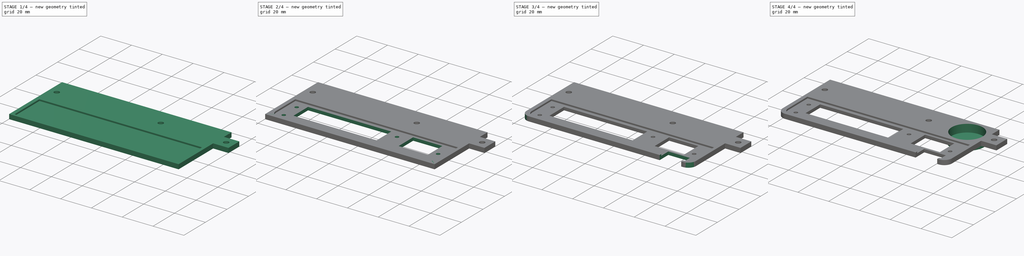
[diagram: build sequence overview — one tinted view per stage of 4, left to right]
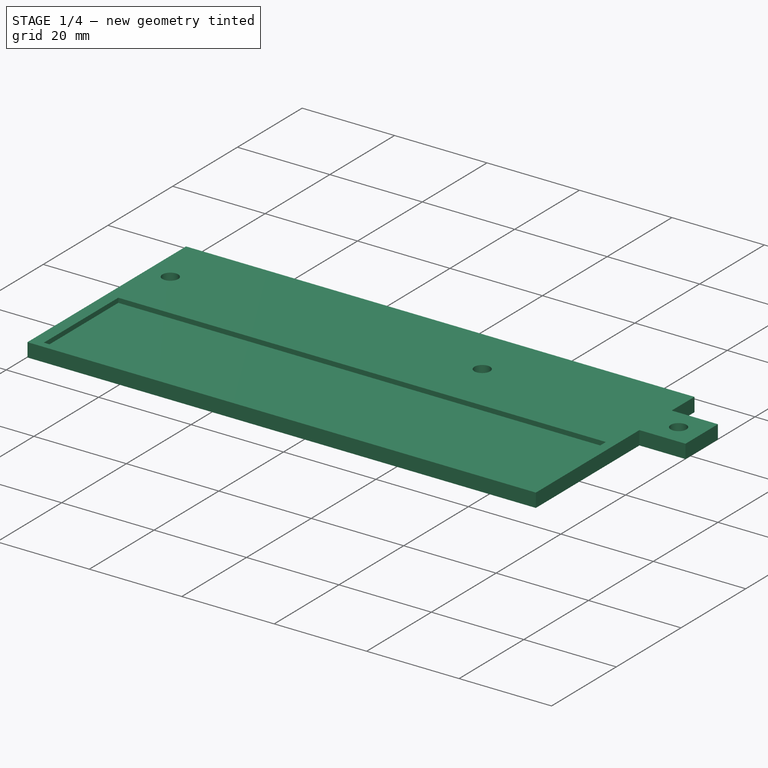
[diagram: stage 1 of 4 — iso view after this stage's code; geometry added in this stage tinted green]
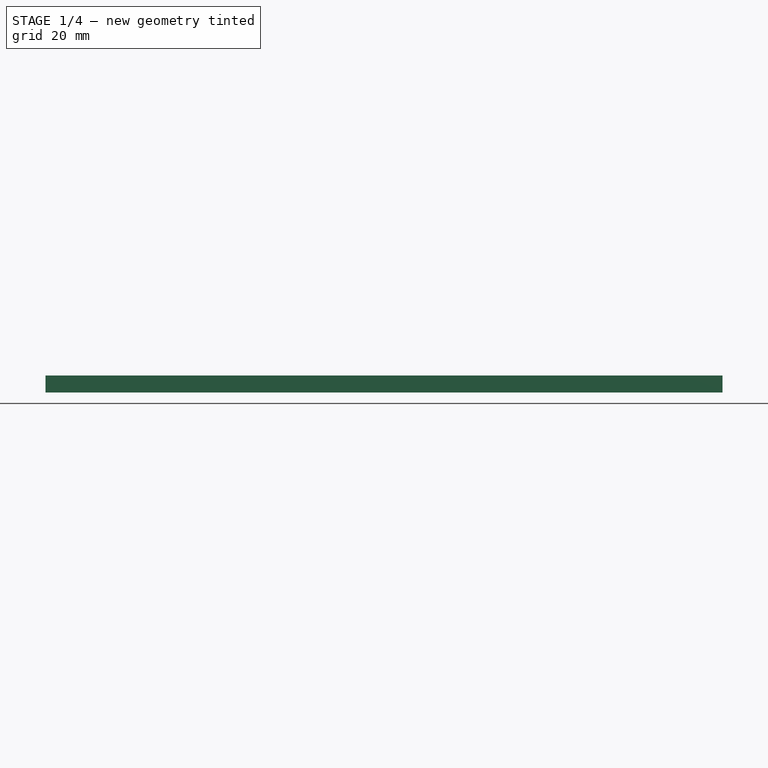
[diagram: stage 1 of 4 — front view after this stage's code; geometry added in this stage tinted green]
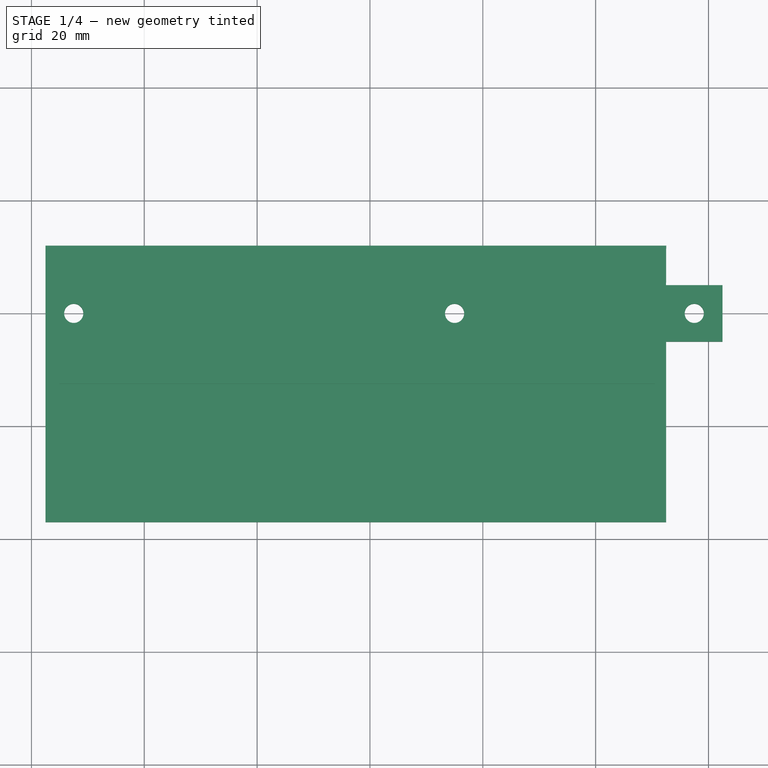
[diagram: stage 1 of 4 — top view after this stage's code; geometry added in this stage tinted green]
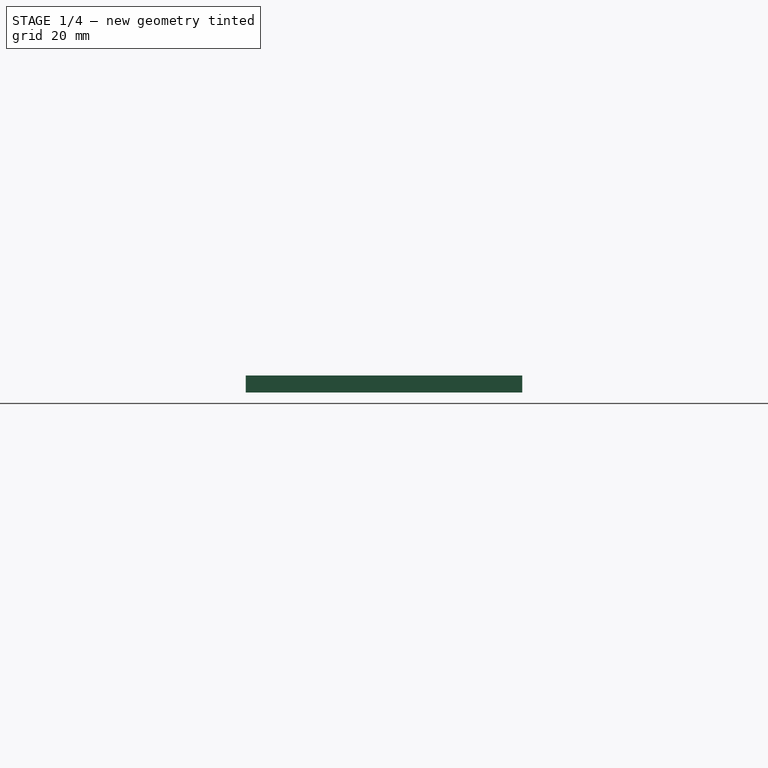
[diagram: stage 1 of 4 — right view after this stage's code; geometry added in this stage tinted green]
FCSTD DOCUMENT  (FreeCAD 0.18.4R)
Label: up_left_magnet_arm_with_pcb_support
License: All rights reserved
LicenseURL: http://en.wikipedia.org/wiki/All_rights_reserved
objects: Sketcher::SketchObject×6, PartDesign::Pocket×4, PartDesign::Fillet×4, PartDesign::Pad×2, PartDesign::Body×1
note: 23 computed .brp shape members not serialized (recipe doc carries the construction recipe); baked Part::Feature solids carry a one-line shape summary decoded from their .brp

FEATURE [Sketcher::SketchObject] Sketch
  MapMode = 5
  Support = -> [XY_Plane]
  sketch-geometry (13):
    g0: LineSegment StartX=-12.9028 StartY=12 StartZ=0 EndX=12.502 EndY=12 EndZ=0
    g1: LineSegment StartX=12.502 StartY=12 StartZ=0 EndX=12.476 EndY=5 EndZ=0
    g2: LineSegment StartX=12.476 StartY=5 StartZ=0 EndX=22.476 EndY=5 EndZ=0
    g3: LineSegment StartX=22.476 StartY=5 StartZ=0 EndX=22.476 EndY=-5 EndZ=0
    g4: LineSegment StartX=22.476 StartY=-5 StartZ=0 EndX=12.5 EndY=-5 EndZ=0
    g5: LineSegment StartX=12.5 StartY=-5 StartZ=0 EndX=12.5 EndY=-12 EndZ=0
    g6: LineSegment StartX=12.5 StartY=-12 StartZ=0 EndX=12.5 EndY=-37 EndZ=0
    g7: LineSegment StartX=12.5 StartY=-37 StartZ=0 EndX=-97.5 EndY=-37 EndZ=0
    g8: LineSegment StartX=-97.5 StartY=-37 StartZ=0 EndX=-97.5 EndY=12 EndZ=0
    g9: LineSegment StartX=-97.5 StartY=12 StartZ=0 EndX=-12.9028 EndY=12 EndZ=0
    g10: Circle CenterX=17.476 CenterY=0 CenterZ=0 NormalX=0 NormalY=0 NormalZ=1 AngleXU=0 Radius=1.7
    g11: Circle CenterX=-92.5 CenterY=0 CenterZ=0 NormalX=0 NormalY=0 NormalZ=1 AngleXU=0 Radius=1.7
    g12: Circle CenterX=-25 CenterY=0 CenterZ=0 NormalX=0 NormalY=0 NormalZ=1 AngleXU=0 Radius=1.7
  constraints (35):
    c: Horizontal(g0)
    c: Coincident(g0,g1)
    c: Coincident(g1,g2)
    c: Horizontal(g2)
    c: Coincident(g2,g3)
    c: Coincident(g3,g4)
    c: Horizontal(g4)
    c: Coincident(g4,g5)
    c: DistanceX(g2,g2) = 10
    c: Coincident(g5,g6)
    c: Vertical(g6)
    c: Coincident(g6,g7)
    c: Horizontal(g7)
    c: Coincident(g7,g8)
    c: Coincident(g8,g9)
    c: Coincident(g9,g0)
    c: Horizontal(g9)
    c: DistanceY(g6,g6) = 25
    c: DistanceX(g7,g7) = 110
    c: DistanceX(g-2,g4) = 12.5
    c: Vertical(g5,g4)
    c: Vertical(g8,g7)
    c: Symmetric(g2,g3,g-1)
    c: PointOnObject(g10,g-1)
    c: Radius(g10) = 1.7
    c: Distance(g10,g3) = 5
    c: PointOnObject(g11,g-1)
    c: PointOnObject(g12,g-1)
    c: Distance(g11,g8) = 5
    c: Radius(g11) = 1.7
    c: Radius(g12) = 1.7
    c: DistanceX(g-2,g12) = -25
    c: Distance(g5) = 7
    c: Distance(g1) = 7
    c: Distance(g3) = 10
FEATURE [PartDesign::Pad] Pad
  Length = 3
  Length2 = 100
  Profile = -> Sketch
  Type = 0
FEATURE [Sketcher::SketchObject] Sketch001
  ExternalGeometry = -> [Pad]
  MapMode = 5
  Placement = pos=(0,0,3) rot=(0,0,1;0rad)
  Support = -> [Pad]
  sketch-geometry (4):
    g0: LineSegment StartX=-95 StartY=-12.5 StartZ=0 EndX=10.5 EndY=-12.5 EndZ=0
    g1: LineSegment StartX=10.5 StartY=-12.5 StartZ=0 EndX=10.5 EndY=-35.5 EndZ=0
    g2: LineSegment StartX=10.5 StartY=-35.5 StartZ=0 EndX=-95 EndY=-35.5 EndZ=0
    g3: LineSegment StartX=-95 StartY=-35.5 StartZ=0 EndX=-95 EndY=-12.5 EndZ=0
  constraints (12):
    c: Coincident(g0,g1)
    c: Coincident(g1,g2)
    c: Coincident(g2,g3)
    c: Coincident(g3,g0)
    c: Horizontal(g0)
    c: Horizontal(g2)
    c: Vertical(g1)
    c: Vertical(g3)
    c: DistanceX(g0,g0) = 105.5
    c: DistanceY(g1,g1) = 23
    c: Distance(g0,g-4) = 2
    c: DistanceY(g-1,g0) = -12.5
FEATURE [PartDesign::Pocket] Pocket
  BaseFeature = -> Pad
  Length = 1
  Length2 = 100
  Profile = -> Sketch001
  Type = 0
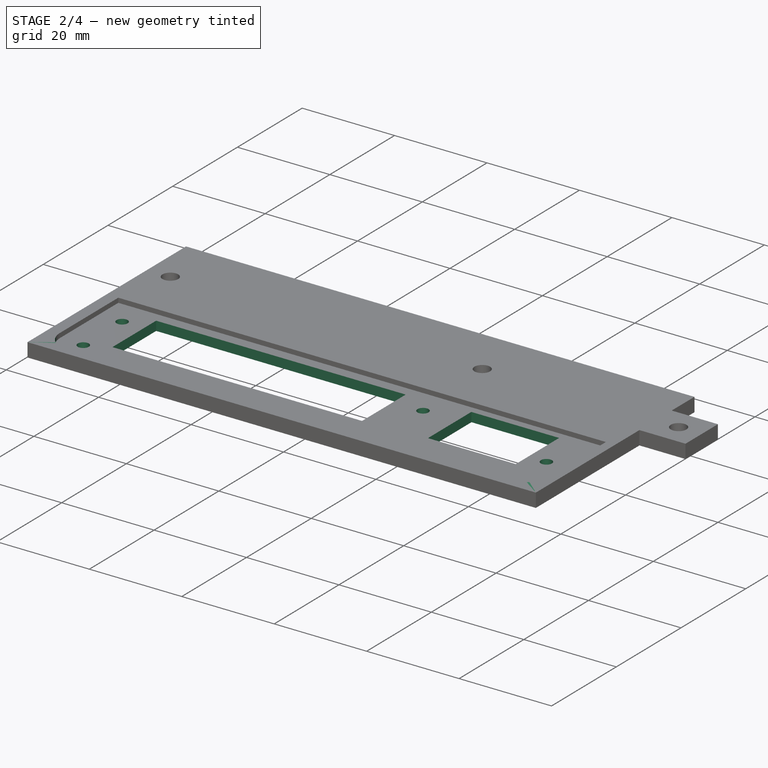
[diagram: stage 2 of 4 — iso view after this stage's code; geometry added in this stage tinted green]
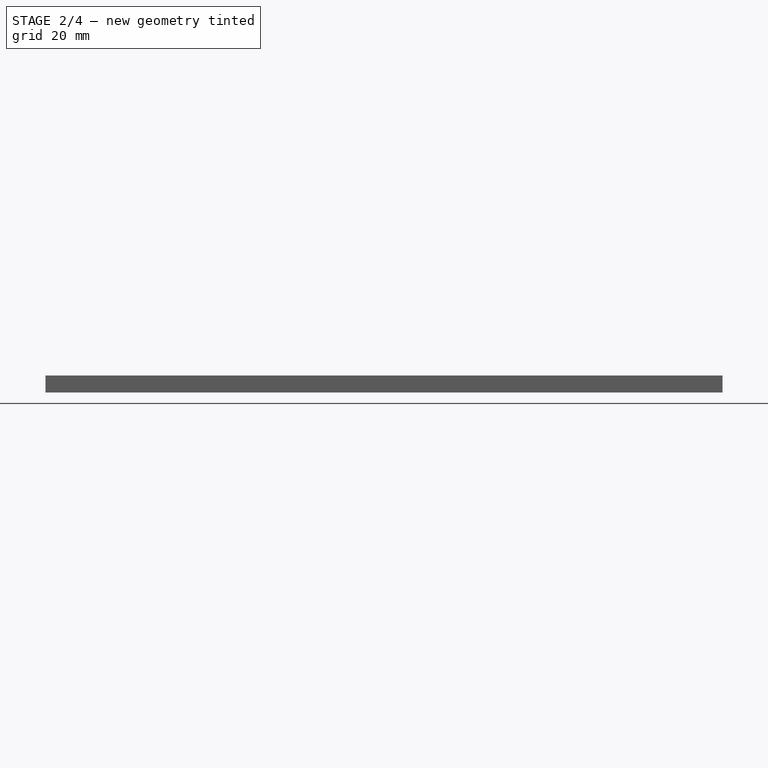
[diagram: stage 2 of 4 — front view after this stage's code; geometry added in this stage tinted green]
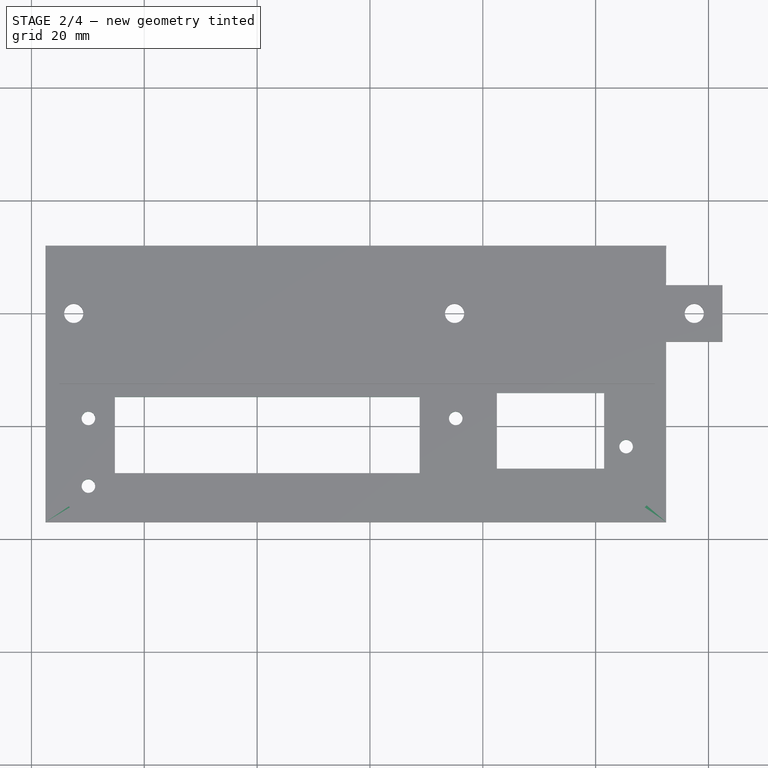
[diagram: stage 2 of 4 — top view after this stage's code; geometry added in this stage tinted green]
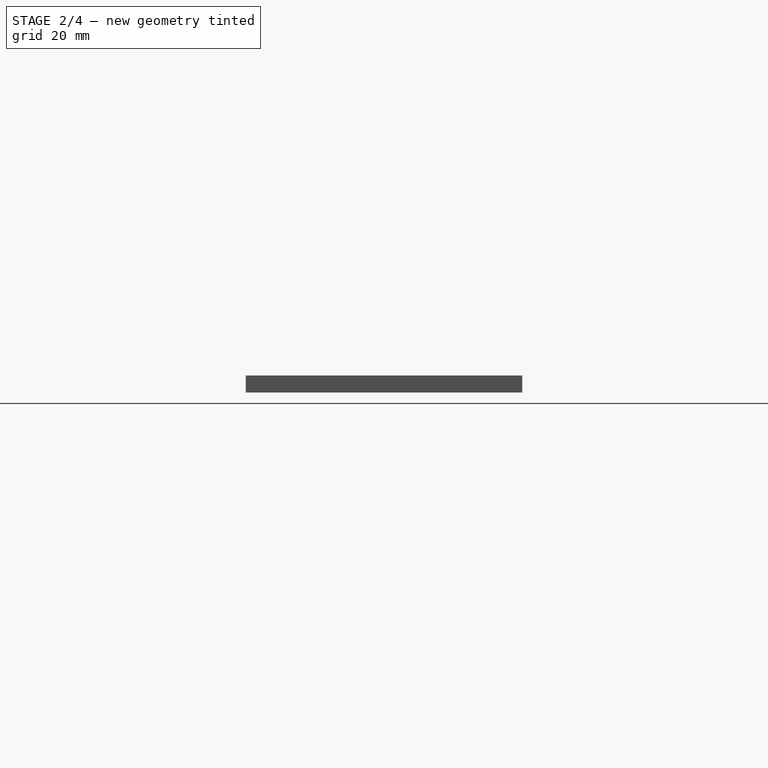
[diagram: stage 2 of 4 — right view after this stage's code; geometry added in this stage tinted green]
FEATURE [Sketcher::SketchObject] Sketch002
  ExternalGeometry = -> [Pocket]
  MapMode = 5
  Placement = pos=(0,0,2) rot=(0,0,1;0rad)
  Support = -> [Pocket]
  sketch-geometry (12):
    g0: Circle CenterX=-89.9 CenterY=-18.6 CenterZ=0 NormalX=0 NormalY=0 NormalZ=1 AngleXU=0 Radius=1.2
    g1: Circle CenterX=-89.9 CenterY=-30.6 CenterZ=0 NormalX=0 NormalY=0 NormalZ=1 AngleXU=0 Radius=1.2
    g2: Circle CenterX=-24.8 CenterY=-18.6 CenterZ=0 NormalX=0 NormalY=0 NormalZ=1 AngleXU=0 Radius=1.2
    g3: Circle CenterX=5.4 CenterY=-23.6 CenterZ=0 NormalX=0 NormalY=0 NormalZ=1 AngleXU=0 Radius=1.2
    g4: LineSegment StartX=-85.2 StartY=-14.8 StartZ=0 EndX=-31.2 EndY=-14.8 EndZ=0
    g5: LineSegment StartX=-31.2 StartY=-14.8 StartZ=0 EndX=-31.2 EndY=-28.3 EndZ=0
    g6: LineSegment StartX=-31.2 StartY=-28.3 StartZ=0 EndX=-85.2 EndY=-28.3 EndZ=0
    g7: LineSegment StartX=-85.2 StartY=-28.3 StartZ=0 EndX=-85.2 EndY=-14.8 EndZ=0
    g8: LineSegment StartX=-17.5 StartY=-14.1 StartZ=0 EndX=1.5 EndY=-14.1 EndZ=0
    g9: LineSegment StartX=1.5 StartY=-14.1 StartZ=0 EndX=1.5 EndY=-27.5 EndZ=0
    g10: LineSegment StartX=1.5 StartY=-27.5 StartZ=0 EndX=-17.5 EndY=-27.5 EndZ=0
    g11: LineSegment StartX=-17.5 StartY=-27.5 StartZ=0 EndX=-17.5 EndY=-14.1 EndZ=0
  constraints (36):
    c: Horizontal(g2,g0)
    c: Vertical(g1,g0)
    c: Radius(g0) = 1.2
    c: Radius(g2) = 1.2
    c: Radius(g3) = 1.2
    c: Radius(g1) = 1.2
    c: Distance(g0,g-3) = 6.1
    c: Distance(g0,g-4) = 5.1
    c: Distance(g1,g0) = 12
    c: Distance(g3,g-3) = 11.1
    c: Distance(g3,g-6) = 5.1
    c: Coincident(g4,g5)
    c: Coincident(g5,g6)
    c: Coincident(g6,g7)
    c: Coincident(g7,g4)
    c: Horizontal(g4)
    c: Horizontal(g6)
    c: Vertical(g5)
    c: Vertical(g7)
    c: Coincident(g8,g9)
    c: Coincident(g9,g10)
    c: Coincident(g10,g11)
    c: Coincident(g11,g8)
    c: Horizontal(g8)
    c: Horizontal(g10)
    c: Vertical(g9)
    c: Vertical(g11)
    c: DistanceX(g4,g4) = 54
    c: Distance(g0,g2) = 65.1
    c: DistanceY(g5,g5) = 13.5
    c: Distance(g4,g-3) = 2.3
    c: Distance(g4,g-4) = 9.8
    c: DistanceX(g8,g8) = 19
    c: DistanceY(g9,g9) = 13.4
    c: Distance(g8,g-3) = 1.6
    c: Distance(g8,g-6) = 9
FEATURE [PartDesign::Pocket] Pocket001
  BaseFeature = -> Pocket
  Length = 5
  Length2 = 100
  Profile = -> Sketch002
  Type = 0
FEATURE [PartDesign::Fillet] Fillet
  Base = -> Pocket001 [Edge83]
  BaseFeature = -> Pocket001
  Radius = 5
FEATURE [PartDesign::Fillet] Fillet001
  Base = -> Fillet [Edge26]
  BaseFeature = -> Fillet
  Radius = 5
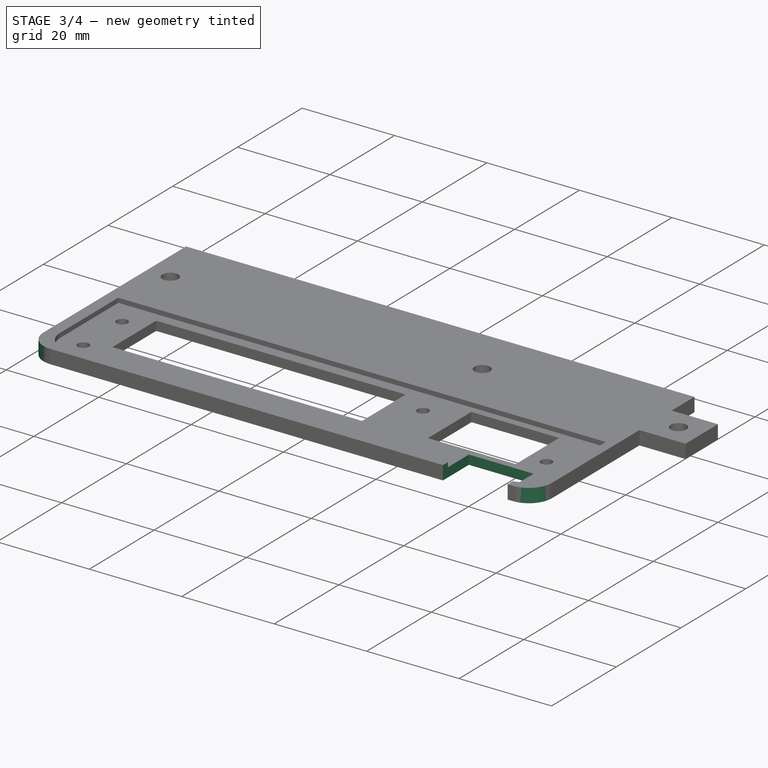
[diagram: stage 3 of 4 — iso view after this stage's code; geometry added in this stage tinted green]
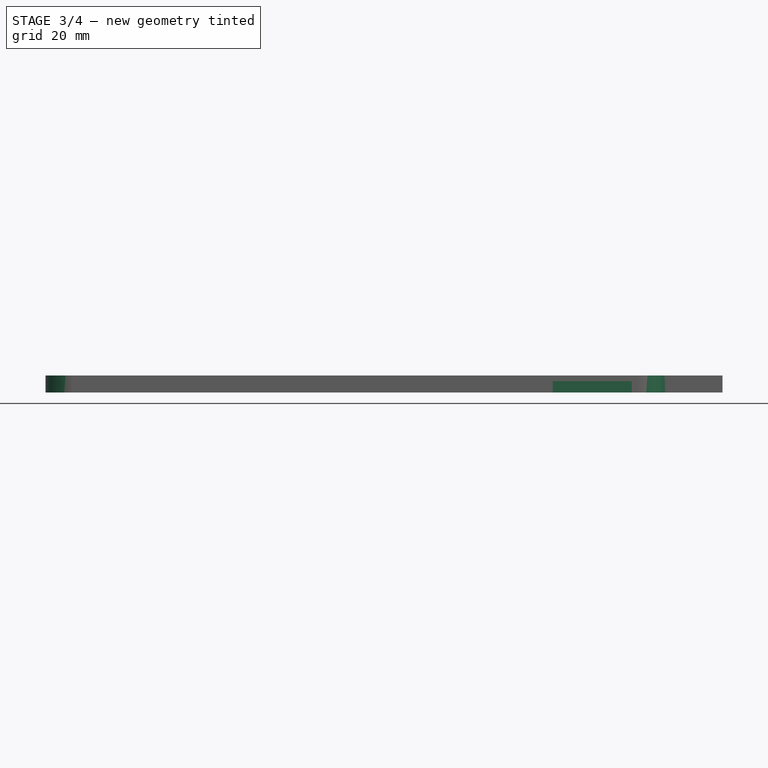
[diagram: stage 3 of 4 — front view after this stage's code; geometry added in this stage tinted green]
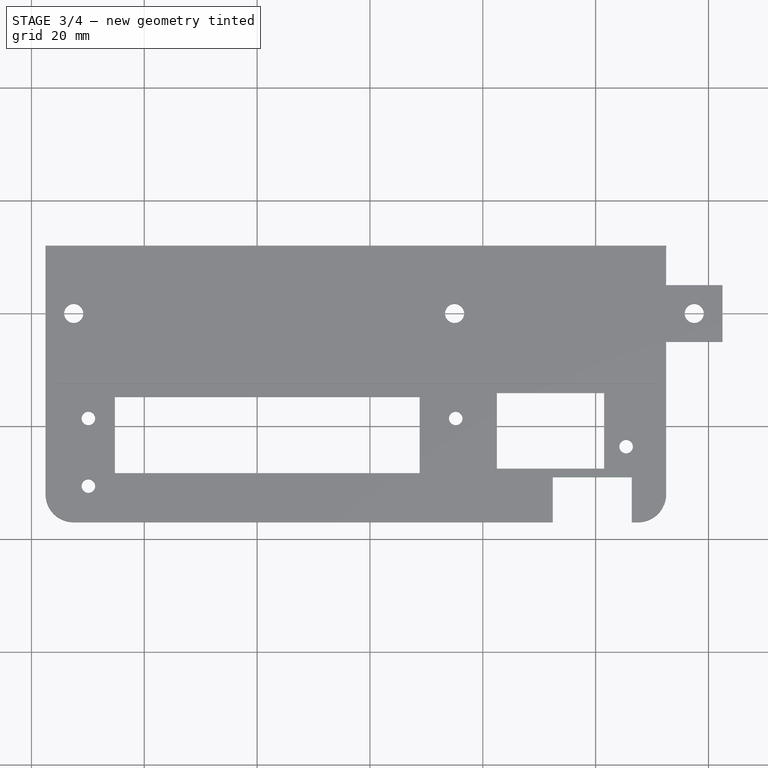
[diagram: stage 3 of 4 — top view after this stage's code; geometry added in this stage tinted green]
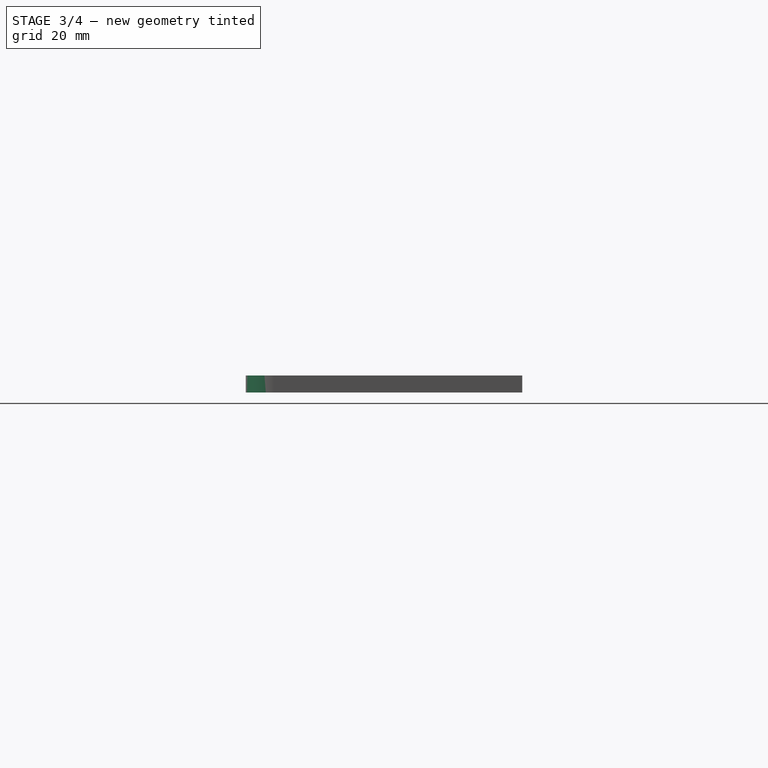
[diagram: stage 3 of 4 — right view after this stage's code; geometry added in this stage tinted green]
FEATURE [PartDesign::Fillet] Fillet002
  Base = -> Fillet001 [Edge39]
  BaseFeature = -> Fillet001
  Radius = 5
FEATURE [PartDesign::Fillet] Fillet003
  Base = -> Fillet002 [Edge29]
  BaseFeature = -> Fillet002
  Radius = 5
FEATURE [Sketcher::SketchObject] Sketch003
  ExternalGeometry = -> [Fillet003]
  MapMode = 5
  Placement = pos=(0,0,3) rot=(0,0,1;0rad)
  Support = -> [Fillet003]
  sketch-geometry (4):
    g0: LineSegment StartX=6.4 StartY=-37 StartZ=0 EndX=-7.6 EndY=-37 EndZ=0
    g1: LineSegment StartX=-7.6 StartY=-37 StartZ=0 EndX=-7.6 EndY=-29 EndZ=0
    g2: LineSegment StartX=-7.6 StartY=-29 StartZ=0 EndX=6.4 EndY=-29 EndZ=0
    g3: LineSegment StartX=6.4 StartY=-29 StartZ=0 EndX=6.4 EndY=-37 EndZ=0
  constraints (12):
    c: Coincident(g0,g1)
    c: Coincident(g1,g2)
    c: Coincident(g2,g3)
    c: Coincident(g3,g0)
    c: Horizontal(g0)
    c: Horizontal(g2)
    c: Vertical(g1)
    c: Vertical(g3)
    c: PointOnObject(g0,g-3)
    c: DistanceX(g2,g2) = 14
    c: DistanceY(g3,g3) = 8
    c: Distance(g2,g-5) = 4.1
FEATURE [PartDesign::Pocket] Pocket002
  BaseFeature = -> Fillet003
  Length = 5
  Length2 = 100
  Profile = -> Sketch003
  Type = 0
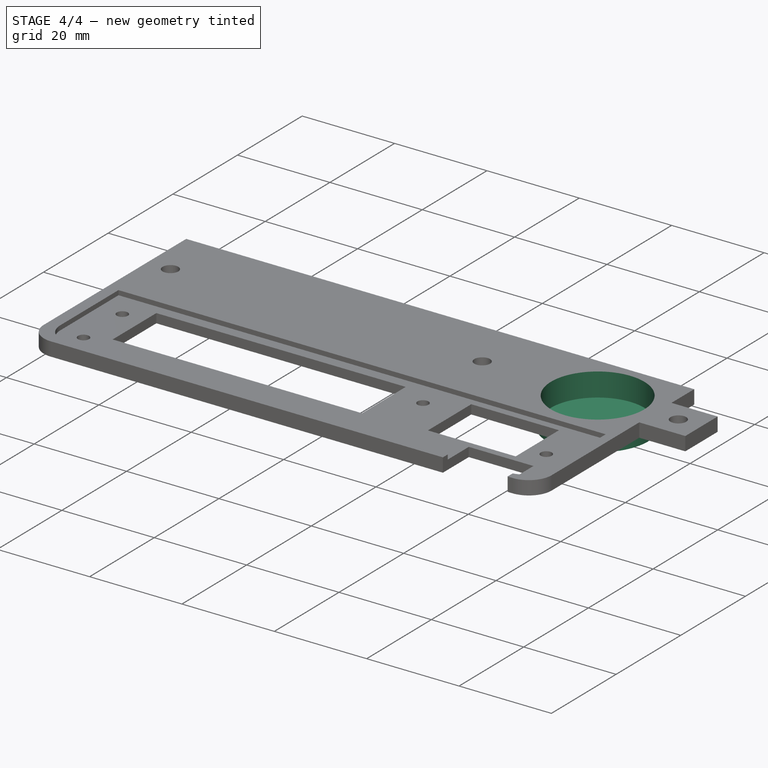
[diagram: stage 4 of 4 — iso view after this stage's code; geometry added in this stage tinted green]
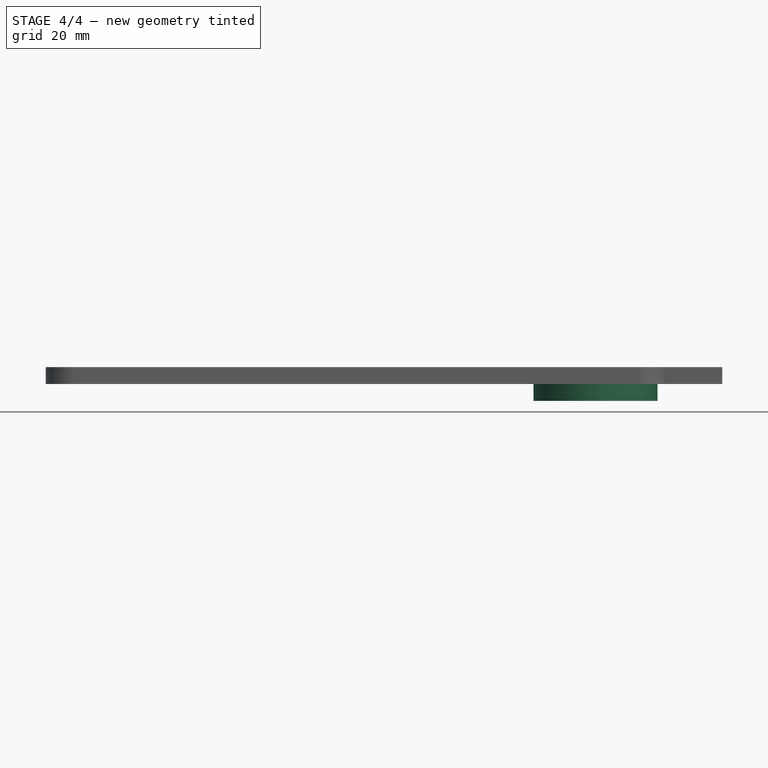
[diagram: stage 4 of 4 — front view after this stage's code; geometry added in this stage tinted green]
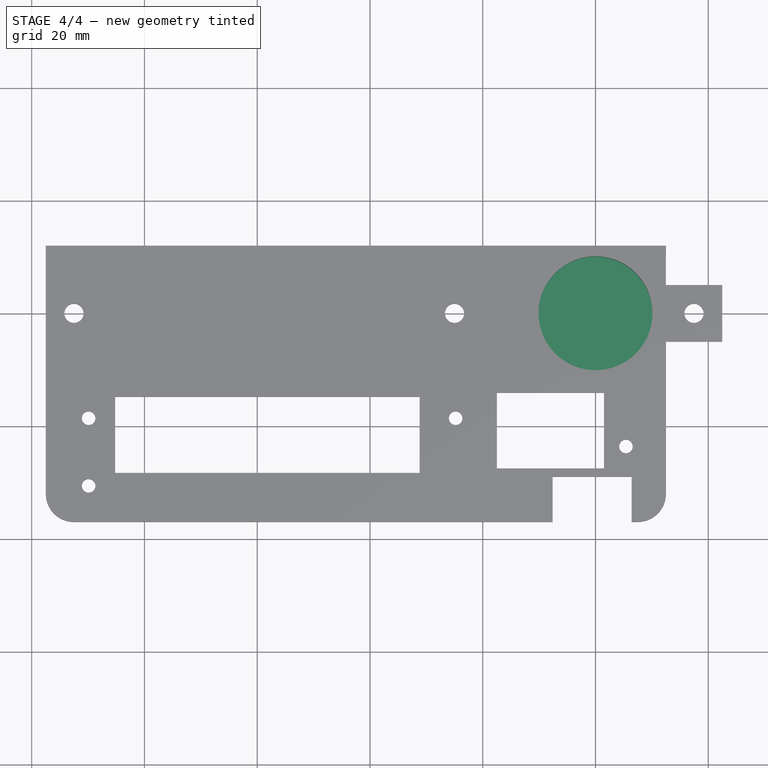
[diagram: stage 4 of 4 — top view after this stage's code; geometry added in this stage tinted green]
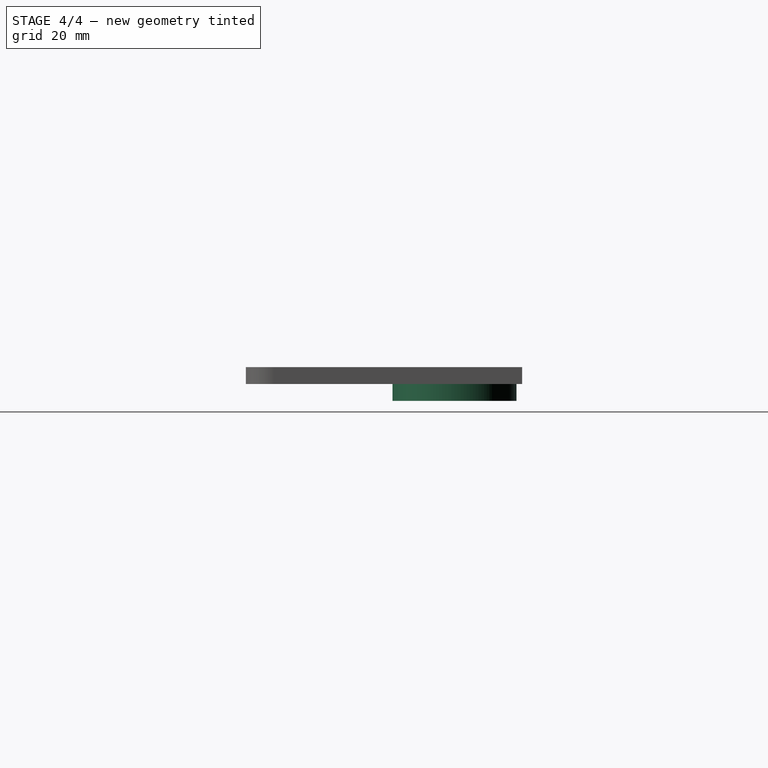
[diagram: stage 4 of 4 — right view after this stage's code; geometry added in this stage tinted green]
FEATURE [Sketcher::SketchObject] Sketch004
  MapMode = 5
  Placement = pos=(0,0,0) rot=(1,0,0;3.14159rad)
  Support = -> [Pocket002]
  sketch-geometry (1):
    g0: Circle CenterX=0 CenterY=0 CenterZ=0 NormalX=0 NormalY=0 NormalZ=1 AngleXU=0 Radius=11
  constraints (2):
    c: Coincident(g0,g-1)
    c: Radius(g0) = 11
FEATURE [PartDesign::Pad] Pad001
  BaseFeature = -> Pocket002
  Length = 3
  Length2 = 100
  Profile = -> Sketch004
  Type = 0
FEATURE [Sketcher::SketchObject] Sketch005
  MapMode = 5
  Placement = pos=(0,0,3) rot=(0,0,1;0rad)
  Support = -> [Pad001]
  sketch-geometry (1):
    g0: Circle CenterX=0 CenterY=0 CenterZ=0 NormalX=0 NormalY=0 NormalZ=1 AngleXU=0 Radius=10.1
  constraints (2):
    c: Coincident(g0,g-1)
    c: Radius(g0) = 10.1
FEATURE [PartDesign::Pocket] Pocket003
  BaseFeature = -> Pad001
  Length = 5.1
  Length2 = 100
  Profile = -> Sketch005
  Type = 0
FEATURE [PartDesign::Body] Body
  Group = -> [Sketch,Pad,Sketch001,Pocket,Sketch002,Pocket001,Fillet,Fillet001,Fillet002,Fillet003,Sketch003,Pocket002,Sketch004,Pad001,Sketch005,Pocket003]
  Origin = -> Origin
  Tip = -> Pocket003
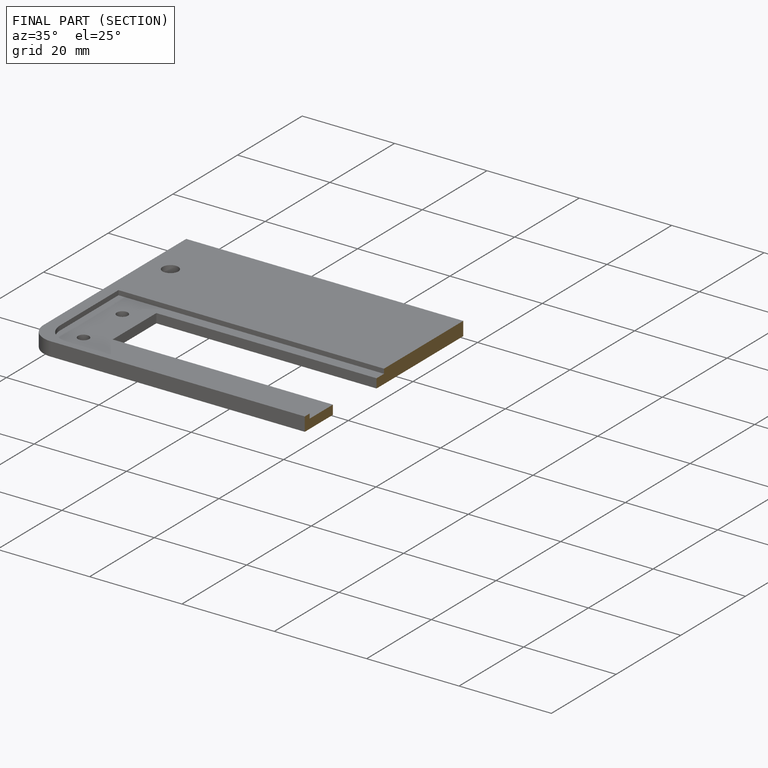
[diagram: finished part — half-section view (interior)]
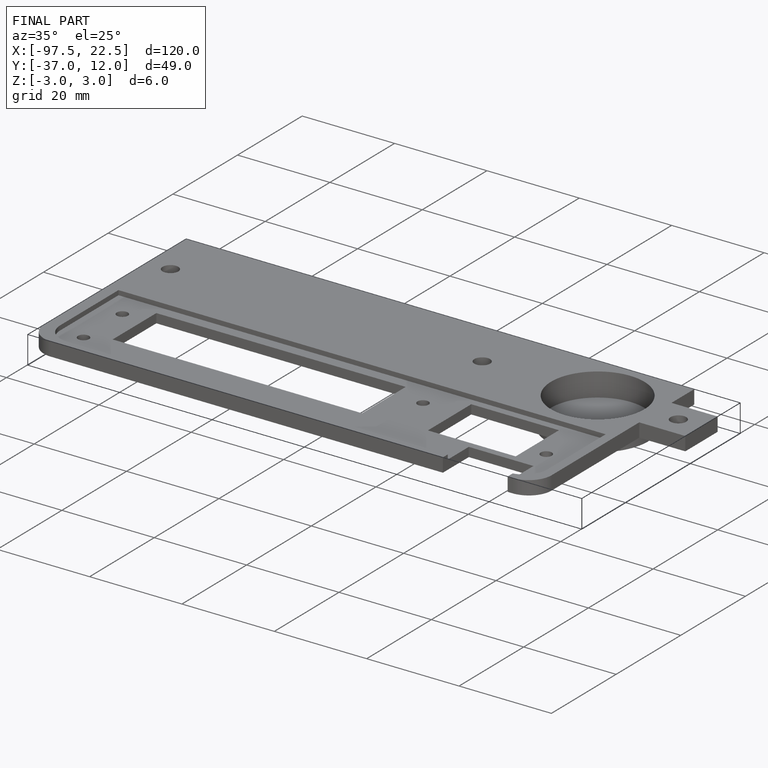
[diagram: finished part — iso view with bounding-box wireframe]
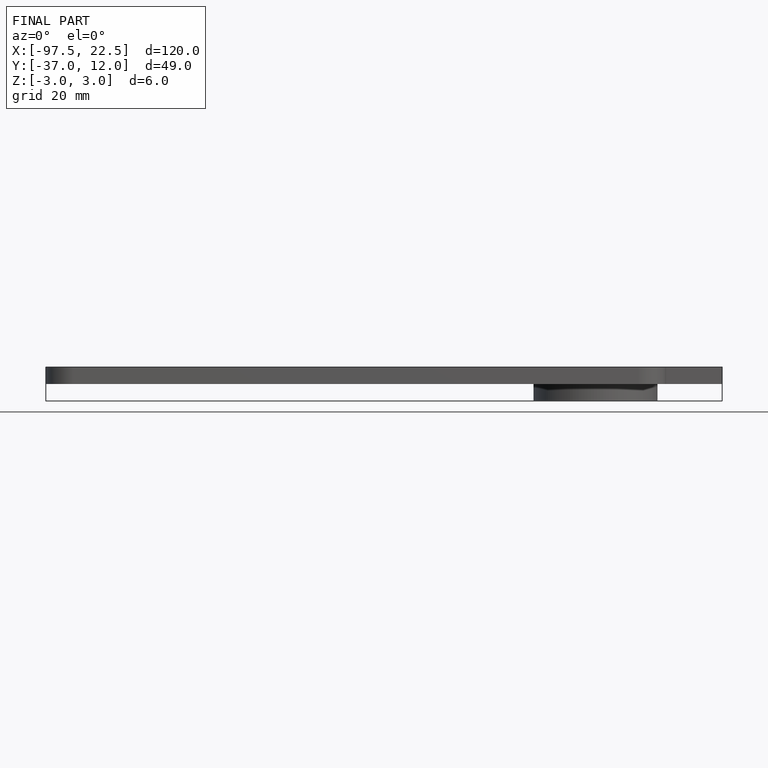
[diagram: finished part — front view with bounding-box wireframe]
